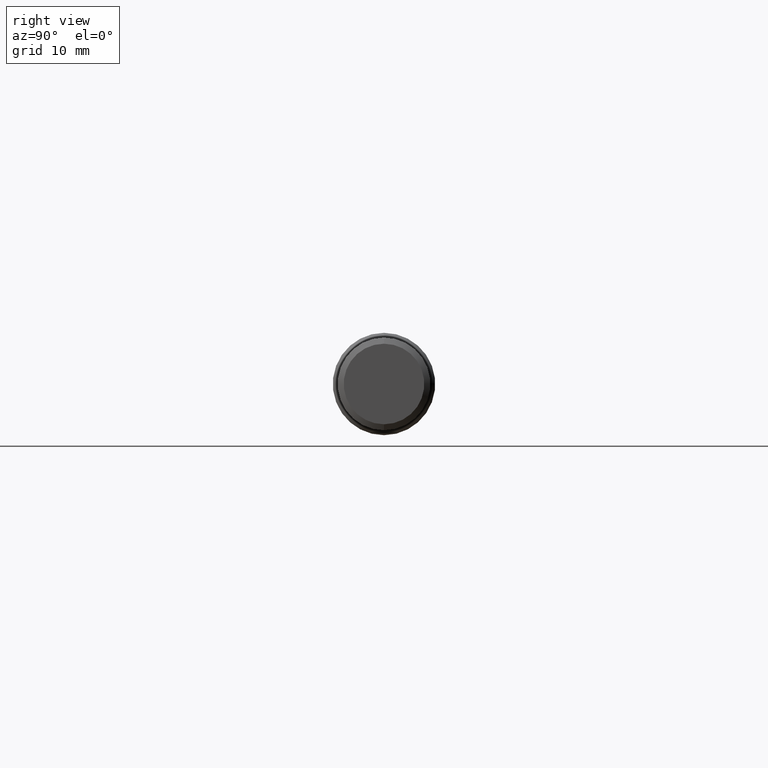
[diagram: clean part render]
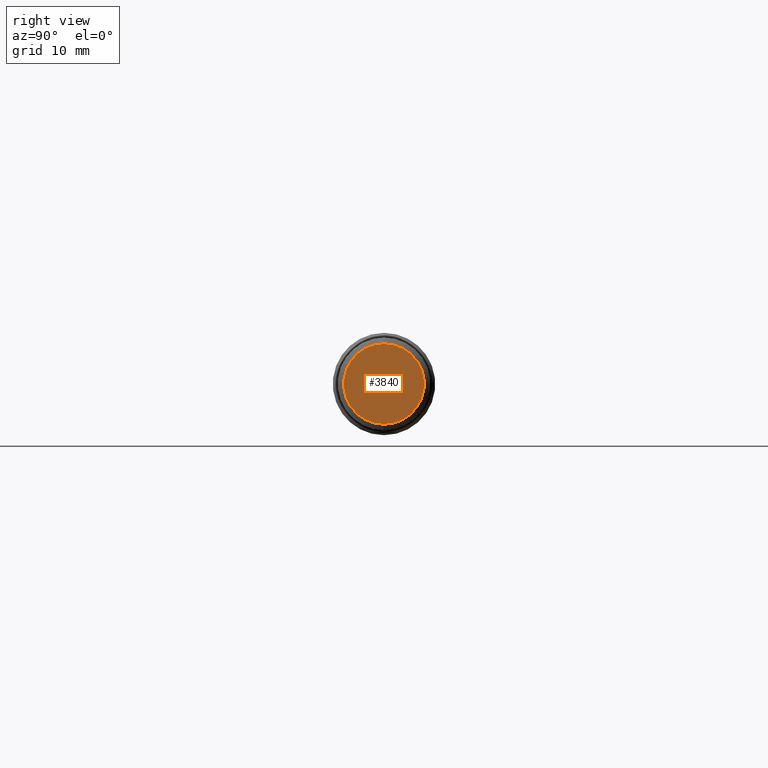
[diagram: same view with one face highlighted and labeled with its STEP entity id]
A machine part, right view. The second image highlights one B-rep face of the part: STEP entity #3840.
In plain terms, the highlighted planar face has unit normal (-1, 0, -0).
Its self-contained STEP definition (entity closure, byte-faithful):
#90 = EDGE_CURVE ( 'NONE', #4754, #482, #2520, .T. ) ;
#202 = FACE_OUTER_BOUND ( 'NONE', #888, .T. ) ;
#482 = VERTEX_POINT ( 'NONE', #841 ) ;
#620 = PLANE ( 'NONE',  #4014 ) ;
#643 = CARTESIAN_POINT ( 'NONE',  ( 3.500000000000000000, 0.2260000000000000064, 0.000000000000000000 ) ) ;
#644 = AXIS2_PLACEMENT_3D ( 'NONE', #1129, #1446, #1468 ) ;
#841 = CARTESIAN_POINT ( 'NONE',  ( 3.500000000000000000, 2.408073504447369592E-17, -0.1966341239060898360 ) ) ;
#888 = EDGE_LOOP ( 'NONE', ( #1059, #4717 ) ) ;
#1059 = ORIENTED_EDGE ( 'NONE', *, *, #90, .F. ) ;
#1129 = CARTESIAN_POINT ( 'NONE',  ( 3.500000000000000000, 0.000000000000000000, 0.000000000000000000 ) ) ;
#1367 = DIRECTION ( 'NONE',  ( 0.000000000000000000, 0.000000000000000000, 1.000000000000000000 ) ) ;
#1446 = DIRECTION ( 'NONE',  ( -1.000000000000000000, -0.000000000000000000, -0.000000000000000000 ) ) ;
#1453 = CARTESIAN_POINT ( 'NONE',  ( 3.500000000000000000, 0.000000000000000000, 0.1966341239060898360 ) ) ;
#1468 = DIRECTION ( 'NONE',  ( 0.000000000000000000, 0.000000000000000000, 1.000000000000000000 ) ) ;
#1730 = CARTESIAN_POINT ( 'NONE',  ( 3.500000000000000000, 0.000000000000000000, 0.000000000000000000 ) ) ;
#2520 = CIRCLE ( 'NONE', #644, 0.1966341239060898360 ) ;
#3218 = DIRECTION ( 'NONE',  ( -1.000000000000000000, -0.000000000000000000, -0.000000000000000000 ) ) ;
#3252 = EDGE_CURVE ( 'NONE', #482, #4754, #3985, .T. ) ;
#3269 = AXIS2_PLACEMENT_3D ( 'NONE', #1730, #3218, #1367 ) ;
#3840 = ADVANCED_FACE ( 'NONE', ( #202 ), #620, .F. ) ;
#3985 = CIRCLE ( 'NONE', #3269, 0.1966341239060898360 ) ;
#4014 = AXIS2_PLACEMENT_3D ( 'NONE', #643, #4383, #4357 ) ;
#4357 = DIRECTION ( 'NONE',  ( -0.000000000000000000, 0.000000000000000000, 1.000000000000000000 ) ) ;
#4383 = DIRECTION ( 'NONE',  ( -1.000000000000000000, 0.000000000000000000, -0.000000000000000000 ) ) ;
#4717 = ORIENTED_EDGE ( 'NONE', *, *, #3252, .F. ) ;
#4754 = VERTEX_POINT ( 'NONE', #1453 ) ;